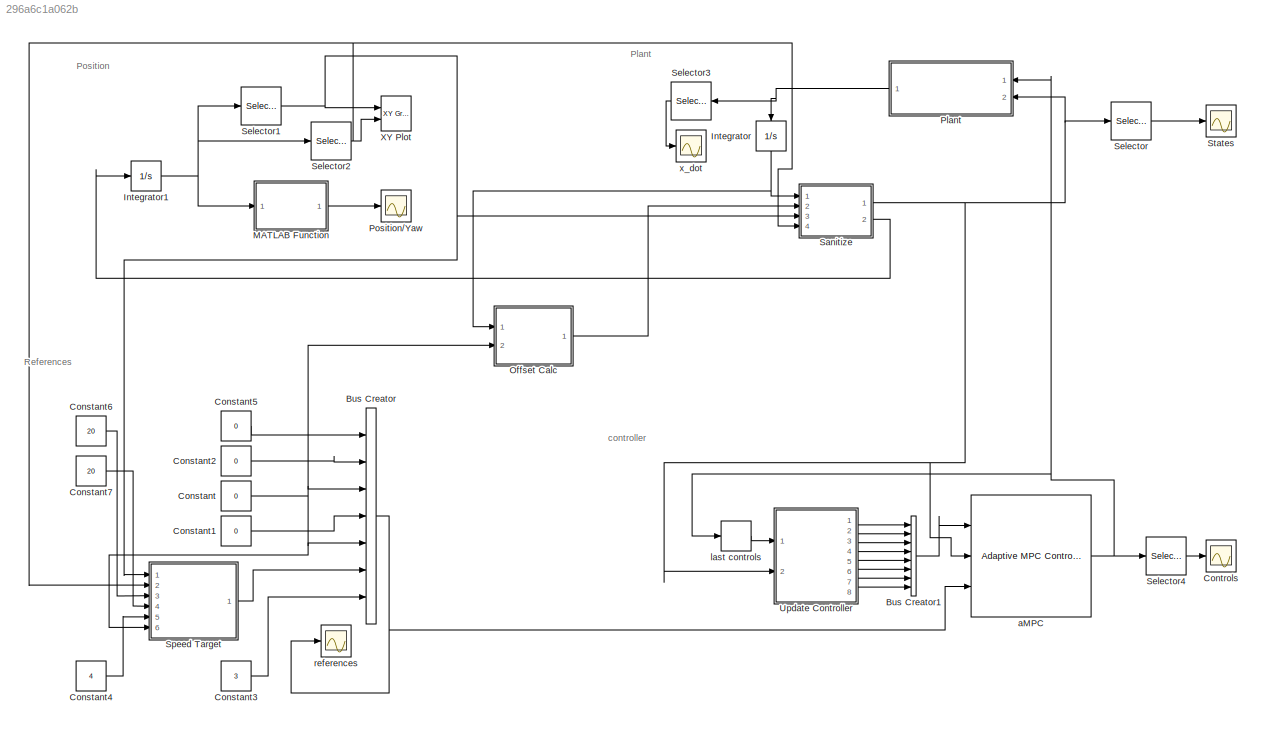
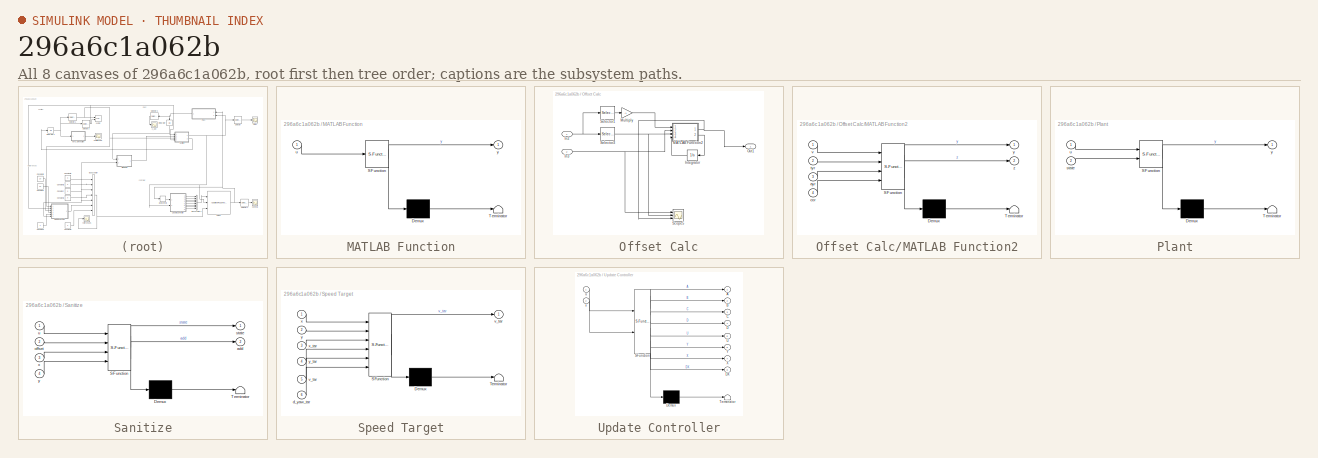
[diagram: thumbnail index - all 8 canvases of the model, root first then tree order]
MODEL slx_296a6c1a062b
KIND model
CONFIG AbsTol = auto
CONFIG EnableMultiTasking = off
CONFIG FixedStep = 0.01
CONFIG MaxStep = auto
CONFIG MinStep = auto
CONFIG RelTol = 1e-3
CONFIG SampleTimeConstraint = Unconstrained
CONFIG Solver = ode1
CONFIG SolverName = ode1
CONFIG StartTime = 0.0
CONFIG StopTime = 6
BLOCK [BusCreator] Bus Creator
  DisplayOption = bar
  InheritFromInputs = on
  Inputs = 7
  Ports = [7, 1]
BLOCK [BusCreator] Bus Creator1
  DisplayOption = bar
  InheritFromInputs = on
  Inputs = 8
  Ports = [8, 1]
BLOCK [Constant] Constant
  Value = 0
BLOCK [Constant] Constant1
  Value = 0
BLOCK [Constant] Constant2
  Value = 0
BLOCK [Constant] Constant3
  Value = 3
BLOCK [Constant] Constant4
  Value = 4
BLOCK [Constant] Constant5
  Value = 0
BLOCK [Constant] Constant6
  Value = 20
BLOCK [Constant] Constant7
  Value = 20
BLOCK [Scope] Controls
  Floating = off
  NumInputPorts = 1
  Ports = [1]
  ScopeSpecificationString = Simulink.scopes.TimeScopeBlockCfg('CurrentConfiguration', extmgr.ConfigurationSet(extmgr.Configuration('Core','General UI',true,'FigureColor',[1 1 1]),extmgr.Configuration('Core','Source UI',true),extmgr.Configuration('Sources','WiredSimulink',true,'DataLogging',true,'DataLoggingVariableName','cv_obst_controls','DataLoggingSaveFormat','Array'),extmgr.Configuration('Visuals','Time Domain',true,'Ser...<+2062ch>
BLOCK [Integrator] Integrator
  InitialCondition = [0; 0.78; 0; 0; 0; 4; 2.5]
  Ports = [1, 1]
BLOCK [Integrator] Integrator1
  Ports = [1, 1]
BLOCK [SubSystem] MATLAB Function
  ErrorFcn = Stateflow.Translate.translate
  PermitHierarchicalResolution = ExplicitOnly
  Ports = [1, 1]
  RequestExecContextInheritance = off
  SFBlockType = MATLAB Function
  TreatAsAtomicUnit = on
BLOCK [Demux] MATLAB Function/ Demux 
  Outputs = 1
  Ports = [1, 1]
BLOCK [S-Function] MATLAB Function/ SFunction 
  EnableBusSupport = on
  FunctionName = sf_sfun
  PortCounts = [1 2]
  Ports = [1, 2]
  SFcnIsStateOwnerBlock = off
  SFunctionDeploymentMode = off
  Tag = Stateflow S-Function model_cv_obst 5
BLOCK [Terminator] MATLAB Function/ Terminator 
BLOCK [Inport] MATLAB Function/u
  IconDisplay = Port number
BLOCK [Outport] MATLAB Function/y
  IconDisplay = Port number
BLOCK [SubSystem] Offset Calc
  Ports = [2, 1]
  RequestExecContextInheritance = off
BLOCK [Inport] Offset Calc/In2
  IconDisplay = Port number
BLOCK [Inport] Offset Calc/In3
  IconDisplay = Port number
  Port = 2
BLOCK [Integrator] Offset Calc/Integrator
  Ports = [1, 1]
BLOCK [SubSystem] Offset Calc/MATLAB Function2
  ErrorFcn = Stateflow.Translate.translate
  PermitHierarchicalResolution = ExplicitOnly
  Ports = [4, 2]
  RequestExecContextInheritance = off
  SFBlockType = MATLAB Function
  TreatAsAtomicUnit = on
BLOCK [Demux] Offset Calc/MATLAB Function2/ Demux 
  Outputs = 1
  Ports = [1, 1]
BLOCK [S-Function] Offset Calc/MATLAB Function2/ SFunction 
  EnableBusSupport = on
  FunctionName = sf_sfun
  PortCounts = [4 3]
  Ports = [4, 3]
  SFcnIsStateOwnerBlock = off
  SFunctionDeploymentMode = off
  Tag = Stateflow S-Function model_cv_obst 3
BLOCK [Terminator] Offset Calc/MATLAB Function2/ Terminator 
BLOCK [Inport] Offset Calc/MATLAB Function2/ayr
  IconDisplay = Port number
  Port = 3
BLOCK [Inport] Offset Calc/MATLAB Function2/cor
  IconDisplay = Port number
  Port = 4
BLOCK [Inport] Offset Calc/MATLAB Function2/tyr
  IconDisplay = Port number
  Port = 2
BLOCK [Inport] Offset Calc/MATLAB Function2/v
  IconDisplay = Port number
BLOCK [Outport] Offset Calc/MATLAB Function2/y
  IconDisplay = Port number
BLOCK [Outport] Offset Calc/MATLAB Function2/z
  IconDisplay = Port number
  Port = 2
BLOCK [Gain] Offset Calc/Multiply
  Gain = -1
  OutDataTypeStr = Inherit: Inherit via internal rule
  ParamDataTypeStr = Inherit: Inherit via internal rule
  SaturateOnIntegerOverflow = off
BLOCK [Outport] Offset Calc/Out1
  IconDisplay = Port number
BLOCK [Scope] Offset Calc/Scope5
  Floating = off
  NumInputPorts = 3
  Ports = [3]
  ScopeSpecificationString = Simulink.scopes.TimeScopeBlockCfg('CurrentConfiguration', extmgr.ConfigurationSet(extmgr.Configuration('Core','General UI',true),extmgr.Configuration('Core','Source UI',true),extmgr.Configuration('Sources','WiredSimulink',true,'DataLoggingVariableName','ScopeData5'),extmgr.Configuration('Visuals','Time Domain',true,'SerializedDisplays',{struct('MinYLimReal','-7.5548','MaxYLimReal','4.36812','YLabe...<+1629ch>
BLOCK [Selector] Offset Calc/Selector1
  IndexOptions = Index vector (dialog)
  Indices = [6]
  InputPortWidth = 7
  OutputSizes = 1
  Ports = [1, 1]
BLOCK [Selector] Offset Calc/Selector3
  IndexOptions = Index vector (dialog)
  Indices = [3]
  InputPortWidth = 7
  OutputSizes = 1
  Ports = [1, 1]
BLOCK [SubSystem] Plant
  ErrorFcn = Stateflow.Translate.translate
  PermitHierarchicalResolution = ExplicitOnly
  Ports = [2, 1]
  RequestExecContextInheritance = off
  SFBlockType = MATLAB Function
  TreatAsAtomicUnit = on
BLOCK [Demux] Plant/ Demux 
  Outputs = 1
  Ports = [1, 1]
BLOCK [S-Function] Plant/ SFunction 
  EnableBusSupport = on
  FunctionName = sf_sfun
  PortCounts = [2 2]
  Ports = [2, 2]
  SFcnIsStateOwnerBlock = off
  SFunctionDeploymentMode = off
  Tag = Stateflow S-Function model_cv_obst 2
BLOCK [Terminator] Plant/ Terminator 
BLOCK [Inport] Plant/state
  IconDisplay = Port number
  Port = 2
BLOCK [Inport] Plant/u
  IconDisplay = Port number
BLOCK [Outport] Plant/y
  IconDisplay = Port number
BLOCK [Scope] Position//Yaw
  Floating = off
  NumInputPorts = 1
  Ports = [1]
  ScopeSpecificationString = Simulink.scopes.TimeScopeBlockCfg('CurrentConfiguration', extmgr.ConfigurationSet(extmgr.Configuration('Core','General UI',true),extmgr.Configuration('Core','Source UI',true),extmgr.Configuration('Sources','WiredSimulink',true,'DataLoggingVariableName','positions_yaw','DataLogging',true,'DataLoggingSaveFormat','Array'),extmgr.Configuration('Visuals','Time Domain',true,'SerializedDisplays',{struct(...<+1830ch>
BLOCK [SubSystem] Sanitize
  ErrorFcn = Stateflow.Translate.translate
  PermitHierarchicalResolution = ExplicitOnly
  Ports = [4, 2]
  RequestExecContextInheritance = off
  SFBlockType = MATLAB Function
  TreatAsAtomicUnit = on
BLOCK [Demux] Sanitize/ Demux 
  Outputs = 1
  Ports = [1, 1]
BLOCK [S-Function] Sanitize/ SFunction 
  EnableBusSupport = on
  FunctionName = sf_sfun
  PortCounts = [4 3]
  Ports = [4, 3]
  SFcnIsStateOwnerBlock = off
  SFunctionDeploymentMode = off
  Tag = Stateflow S-Function model_cv_obst 1
BLOCK [Terminator] Sanitize/ Terminator 
BLOCK [Outport] Sanitize/add
  IconDisplay = Port number
  Port = 2
BLOCK [Inport] Sanitize/offset
  IconDisplay = Port number
  Port = 2
BLOCK [Outport] Sanitize/state
  IconDisplay = Port number
BLOCK [Inport] Sanitize/u
  IconDisplay = Port number
BLOCK [Inport] Sanitize/x
  IconDisplay = Port number
  Port = 3
BLOCK [Inport] Sanitize/y
  IconDisplay = Port number
  Port = 4
BLOCK [Selector] Selector
  IndexOptions = Index vector (dialog)
  Indices = [1 2 3 4 6 7]
  InputPortWidth = 7
  OutputSizes = 1
  Ports = [1, 1]
BLOCK [Selector] Selector1
  IndexOptions = Index vector (dialog)
  Indices = [1]
  InputPortWidth = 3
  OutputSizes = 1
  Ports = [1, 1]
BLOCK [Selector] Selector2
  IndexOptions = Index vector (dialog)
  Indices = [2]
  InputPortWidth = 3
  OutputSizes = 1
  Ports = [1, 1]
BLOCK [Selector] Selector3
  IndexOptions = Index vector (dialog)
  Indices = [1 2 3 4 6 7]
  InputPortWidth = 7
  OutputSizes = 1
  Ports = [1, 1]
BLOCK [Selector] Selector4
  IndexOptions = Index vector (dialog)
  Indices = [1 3 4]
  InputPortWidth = 4
  OutputSizes = 1
  Ports = [1, 1]
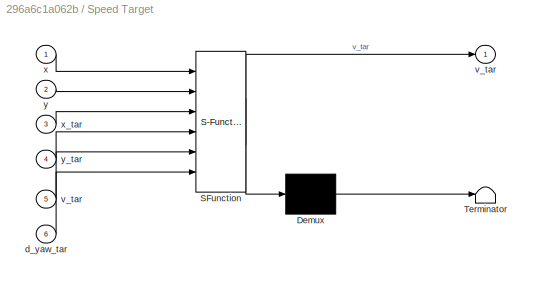
BLOCK [SubSystem] Speed Target
  ErrorFcn = Stateflow.Translate.translate
  PermitHierarchicalResolution = ExplicitOnly
  Ports = [6, 1]
  RequestExecContextInheritance = off
  SFBlockType = MATLAB Function
  TreatAsAtomicUnit = on
BLOCK [Demux] Speed Target/ Demux 
  Outputs = 1
  Ports = [1, 1]
BLOCK [S-Function] Speed Target/ SFunction 
  EnableBusSupport = on
  FunctionName = sf_sfun
  PortCounts = [6 2]
  Ports = [6, 2]
  SFcnIsStateOwnerBlock = off
  SFunctionDeploymentMode = off
  Tag = Stateflow S-Function model_cv_obst 6
BLOCK [Terminator] Speed Target/ Terminator 
BLOCK [Inport] Speed Target/d_yaw_tar
  IconDisplay = Port number
  Port = 6
BLOCK [Outport] Speed Target/v_tar
  IconDisplay = Port number
BLOCK [Inport] Speed Target/v_tar 
  IconDisplay = Port number
  Port = 5
BLOCK [Inport] Speed Target/x
  IconDisplay = Port number
BLOCK [Inport] Speed Target/x_tar
  IconDisplay = Port number
  Port = 3
BLOCK [Inport] Speed Target/y
  IconDisplay = Port number
  Port = 2
BLOCK [Inport] Speed Target/y_tar
  IconDisplay = Port number
  Port = 4
BLOCK [Scope] States
  Floating = off
  NumInputPorts = 1
  Ports = [1]
  ScopeSpecificationString = Simulink.scopes.TimeScopeBlockCfg('CurrentConfiguration', extmgr.ConfigurationSet(extmgr.Configuration('Core','General UI',true),extmgr.Configuration('Core','Source UI',true),extmgr.Configuration('Sources','WiredSimulink',true,'DataLoggingVariableName','states','DataLogging',true,'DataLoggingSaveFormat','Array'),extmgr.Configuration('Visuals','Time Domain',true,'SerializedDisplays',{struct('MinYLi...<+2083ch>
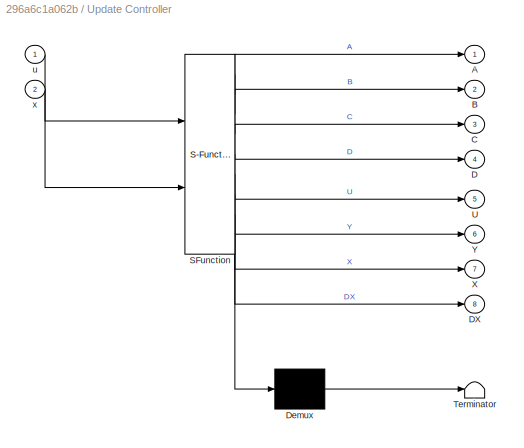
BLOCK [SubSystem] Update Controller
  ErrorFcn = Stateflow.Translate.translate
  PermitHierarchicalResolution = ExplicitOnly
  Ports = [2, 8]
  RequestExecContextInheritance = off
  SFBlockType = MATLAB Function
  TreatAsAtomicUnit = on
BLOCK [Demux] Update Controller/ Demux 
  Outputs = 1
  Ports = [1, 1]
BLOCK [S-Function] Update Controller/ SFunction 
  EnableBusSupport = on
  FunctionName = sf_sfun
  PortCounts = [2 9]
  Ports = [2, 9]
  SFcnIsStateOwnerBlock = off
  SFunctionDeploymentMode = off
  Tag = Stateflow S-Function model_cv_obst 4
BLOCK [Terminator] Update Controller/ Terminator 
BLOCK [Outport] Update Controller/A
  IconDisplay = Port number
BLOCK [Outport] Update Controller/B
  IconDisplay = Port number
  Port = 2
BLOCK [Outport] Update Controller/C
  IconDisplay = Port number
  Port = 3
BLOCK [Outport] Update Controller/D
  IconDisplay = Port number
  Port = 4
BLOCK [Outport] Update Controller/DX
  IconDisplay = Port number
  Port = 8
BLOCK [Outport] Update Controller/U
  IconDisplay = Port number
  Port = 5
BLOCK [Outport] Update Controller/X
  IconDisplay = Port number
  Port = 7
BLOCK [Outport] Update Controller/Y
  IconDisplay = Port number
  Port = 6
BLOCK [Inport] Update Controller/u
  IconDisplay = Port number
BLOCK [Inport] Update Controller/x
  IconDisplay = Port number
  Port = 2
BLOCK [Reference] XY Plot  REF=simulink/Sinks/XY Graph
  Ports = [2]
  SourceBlock = simulink/Sinks/XY Graph
  SourceProductBaseCode = SL
  SourceProductName = Simulink
  SourceType = XY scope.
BLOCK [Reference] aMPC  REF=mpclib/Adaptive MPC Controller  (lib defined in mdl_ae329e0e0455)
  Ports = [3, 1]
  SCDEnableBlockLinearizationSpecification = on
  SourceBlock = mpclib/Adaptive MPC Controller
  SourceProductBaseCode = Missing
  SourceProductName = MATLAB Runtime - Model Predictive Control Toolbox Addin
  SourceType = Adaptive MPC
BLOCK [Memory] last controls
BLOCK [Scope] references
  Floating = off
  NumInputPorts = 1
  Ports = [1]
  ScopeSpecificationString = Simulink.scopes.TimeScopeBlockCfg('CurrentConfiguration', extmgr.ConfigurationSet(extmgr.Configuration('Core','General UI',true),extmgr.Configuration('Core','Source UI',true),extmgr.Configuration('Sources','WiredSimulink',true,'DataLoggingVariableName','ScopeData3'),extmgr.Configuration('Visuals','Time Domain',true,'SerializedDisplays',{struct('MinYLimReal','-0.5','MaxYLimReal','4.5','YLabelReal',...<+1594ch>
BLOCK [Scope] x_dot
  Floating = off
  NumInputPorts = 1
  Ports = [1]
  ScopeSpecificationString = Simulink.scopes.TimeScopeBlockCfg('CurrentConfiguration', extmgr.ConfigurationSet(extmgr.Configuration('Core','General UI',true),extmgr.Configuration('Core','Source UI',true),extmgr.Configuration('Sources','WiredSimulink',true,'DataLoggingVariableName','ScopeData4'),extmgr.Configuration('Visuals','Time Domain',true,'SerializedDisplays',{struct('MinYLimReal','-7.5548','MaxYLimReal','4.36812','YLabe...<+1617ch>
ANNOTATION (root): Plant
ANNOTATION (root): Position
ANNOTATION (root): References
ANNOTATION (root): controller
LINE Bus Creator1:1 -> aMPC:1
NET Bus Creator:1 -> aMPC:3, references:1
LINE Constant1:1 -> Bus Creator:4
LINE Constant2:1 -> Bus Creator:2
LINE Constant3:1 -> Bus Creator:7
LINE Constant4:1 -> Speed Target:5
LINE Constant5:1 -> Bus Creator:1
LINE Constant6:1 -> Speed Target:3
LINE Constant7:1 -> Speed Target:4
NET Constant:1 -> Bus Creator:3, Bus Creator:5, Offset Calc:2, Speed Target:6
NET Integrator1:1 -> MATLAB Function:1, Selector1:1, Selector2:1
NET Integrator:1 -> Offset Calc:1, Sanitize:1
LINE MATLAB Function:1 -> Position//Yaw:1
NET Offset Calc/In2:1 -> Offset Calc/Selector1:1, Offset Calc/Selector3:1
NET Offset Calc/In3:1 -> Offset Calc/MATLAB Function2:2, Offset Calc/Scope5:1
LINE Offset Calc/Integrator:1 -> Offset Calc/MATLAB Function2:4
NET Offset Calc/MATLAB Function2:1 -> Offset Calc/Out1:1, Offset Calc/Scope5:3
LINE Offset Calc/MATLAB Function2:2 -> Offset Calc/Integrator:1
LINE Offset Calc/Multiply:1 -> Offset Calc/MATLAB Function2:1
LINE Offset Calc/Selector1:1 -> Offset Calc/Multiply:1
NET Offset Calc/Selector3:1 -> Offset Calc/MATLAB Function2:3, Offset Calc/Scope5:2
LINE Offset Calc:1 -> Sanitize:2
NET Plant:1 -> Integrator:1, Selector3:1
NET Sanitize:1 -> Plant:2, Selector:1, Update Controller:2, aMPC:2
LINE Sanitize:2 -> Integrator1:1
NET Selector1:1 -> Sanitize:3, Speed Target:1, XY Plot:1
NET Selector2:1 -> Sanitize:4, Speed Target:2, XY Plot:2
LINE Selector3:1 -> x_dot:1
LINE Selector4:1 -> Controls:1
LINE Selector:1 -> States:1
LINE Speed Target:1 -> Bus Creator:6
LINE Update Controller:1 -> Bus Creator1:1
LINE Update Controller:2 -> Bus Creator1:2
LINE Update Controller:3 -> Bus Creator1:3
LINE Update Controller:4 -> Bus Creator1:4
LINE Update Controller:5 -> Bus Creator1:5
LINE Update Controller:6 -> Bus Creator1:6
LINE Update Controller:7 -> Bus Creator1:7
LINE Update Controller:8 -> Bus Creator1:8
NET aMPC:1 -> Plant:1, Selector4:1, last controls:1
LINE last controls:1 -> Update Controller:1
note: NET lines group one-source signal fan-out (src -> all destinations, sorted); 1:1 wires keep LINE
CHART Sanitize states=1 transitions=1
  STATE_LABEL 'eML_blk_kernel()'
  STATE_LABEL 'SCRIPT:\nfunction [state, add]= fcn(u, offset, x, y)\n\ndist_to_obstacle = 9;\n\nu(1) = offset;          % offset as from subsystem\nu(6) = max(u(6), 0);    % no negative speed\nremaining_dist = (dist_to_obstacle-sqrt(x^2+y^2));\nif (remaining_dist < 1 && u(6)<1 )\n    remaining_dist = 0;\nend\nu(7) = remaining_dist/max(0.1, u(6));\n\nstate = u;\n\nVx = u(6);\nadd = [cos(state(2))*Vx; sin(state(2))*Vx; state(3)];...<+3ch>'
CHART Plant states=1 transitions=1
  STATE_LABEL 'eML_blk_kernel()'
  STATE_LABEL 'SCRIPT:\nfunction y = fcn(u, state)\n\n% Parameters definition\nm = 22;     % (kg)   ETROPOLIS Neo 29er 50W 36V 12Ah\nlf = 1.10;  % (m) Distance mass center/front wheel\nlr = 0.70;  % (m) Distance mass center/rear wheel\ncf = 900;   % (N/rad) lateral static stiffness\ncr = 1370;  % (N/rad) lateral static stiffness\niz = 1/12 * (m) * (lr+lf)^2;  % (kgm^2) moment of inertia of bicycle --> 1/12 m l^2 = 1/12 *...<+547ch>'
CHART Offset Calc/MATLAB Function2 states=1 transitions=1
  STATE_LABEL 'eML_blk_kernel()'
  STATE_LABEL 'SCRIPT:\nfunction [y, z]= fcn(v, tyr, ayr, cor)\n\ncorrection_angle = (ayr-tyr)+cor;\n\ny = correction_angle*v;\nz = (ayr-tyr);\n\n'
CHART Update Controller states=1 transitions=1
  STATE_LABEL 'eML_blk_kernel()'
  STATE_LABEL 'SCRIPT:\nfunction [A,B,C,D,U,Y,X,DX] = fcn(u,x)\n\n% Parameters definition\nm = 22;     % (kg)   ETROPOLIS Neo 29er 50W 36V 12Ah\nlf = 1.10;  % (m) Distance mass center/front wheel\nlr = 0.70;  % (m) Distance mass center/rear wheel\ncf = 900;   % (N/rad) lateral static stiffness\ncr = 1370;  % (N/rad) lateral static stiffness\niz = 1/12 * (m) * (lr+lf)^2;  % (kgm^2) moment of inertia of bicycle --> 1/12 m ...<+781ch>'
CHART MATLAB Function states=1 transitions=1
  STATE_LABEL 'eML_blk_kernel()'
  STATE_LABEL 'SCRIPT:\nfunction y = fcn(u)\n\nyaw_off = u(3)-pi;\nu(3) = mod(abs(yaw_off), 2*pi) * sign(yaw_off) + pi;\n\ny = u;\n'
CHART Speed Target states=1 transitions=1
  STATE_LABEL 'eML_blk_kernel()'
  STATE_LABEL 'SCRIPT:\nfunction v_tar = fcn(x, y, x_tar, y_tar, v_tar, d_yaw_tar)\n\n% Rearange data\nposition = [x, y];\nposition_target = [x_tar, y_tar];\n\n% Calculate delta position\ndelta_position = position - position_target;\ndistance_speed = norm(delta_position)/2;\nyaw_speed = (v_tar-3*d_yaw_tar)+1.5;\ncurrent_approp_speed = min(distance_speed, yaw_speed);\n\nv_tar = min(v_tar, current_approp_speed);\n'
